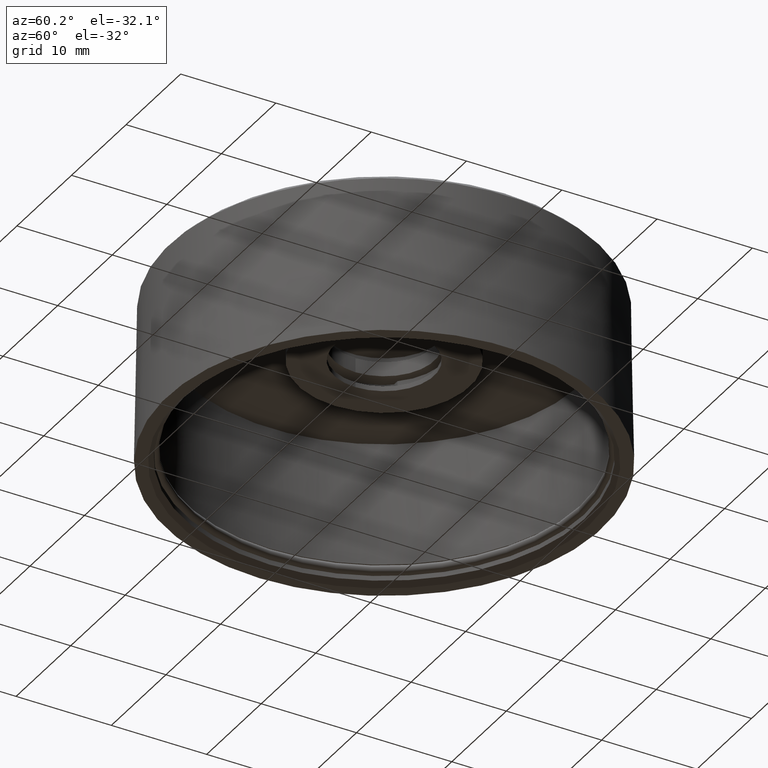
[diagram: clean part render]
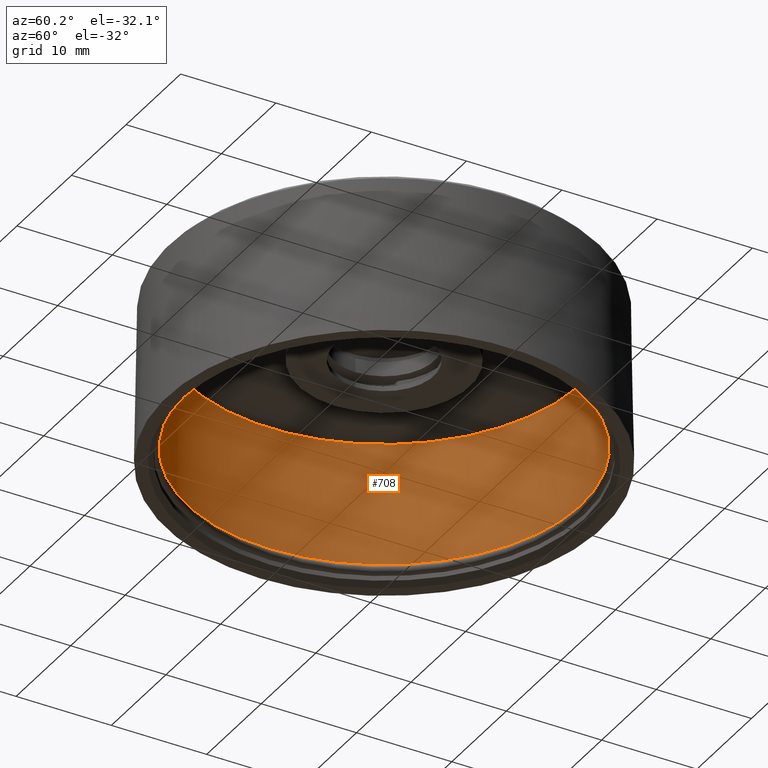
[diagram: same view with one face highlighted and labeled with its STEP entity id]
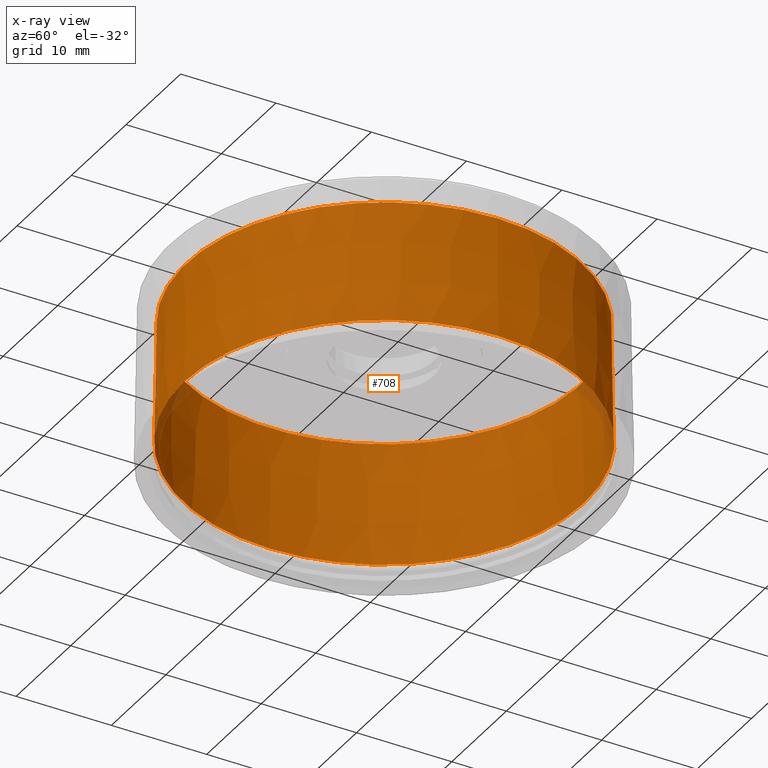
[diagram: x-ray of the same camera — body ghosted, the highlighted face saturated]
A machine part, auxiliary view. The second image highlights one B-rep face of the part: STEP entity #708.
The next image is the same camera in x-ray: the body ghosted, the highlighted face saturated — about 2% of this face is hidden behind the body in this view.
In plain terms, the highlighted conical surface has half-angle 1 deg.
Its self-contained STEP definition (entity closure, byte-faithful):
#27 = VERTEX_POINT ( 'NONE', #334 ) ;
#105 = AXIS2_PLACEMENT_3D ( 'NONE', #191, #806, #420 ) ;
#191 = CARTESIAN_POINT ( 'NONE',  ( 0.000000000000000000, 0.000000000000000000, 0.08661417322834646937 ) ) ;
#255 = VERTEX_POINT ( 'NONE', #868 ) ;
#274 = CONICAL_SURFACE ( 'NONE', #723, 0.8169291338582678197, 0.01745329251994153993 ) ;
#303 = DIRECTION ( 'NONE',  ( 0.000000000000000000, 0.000000000000000000, 1.000000000000000000 ) ) ;
#334 = CARTESIAN_POINT ( 'NONE',  ( 0.8169291338582678197, 0.000000000000000000, 0.5905511811023621549 ) ) ;
#398 = CIRCLE ( 'NONE', #785, 0.8169291338582678197 ) ;
#419 = DIRECTION ( 'NONE',  ( 0.000000000000000000, 0.000000000000000000, -1.000000000000000000 ) ) ;
#420 = DIRECTION ( 'NONE',  ( 1.000000000000000000, 0.000000000000000000, 0.000000000000000000 ) ) ;
#439 = FACE_OUTER_BOUND ( 'NONE', #584, .T. ) ;
#508 = ORIENTED_EDGE ( 'NONE', *, *, #875, .T. ) ;
#538 = DIRECTION ( 'NONE',  ( 1.000000000000000000, 0.000000000000000000, 0.000000000000000000 ) ) ;
#540 = CIRCLE ( 'NONE', #105, 0.8257253870504410731 ) ;
#584 = EDGE_LOOP ( 'NONE', ( #971 ) ) ;
#597 = EDGE_LOOP ( 'NONE', ( #508 ) ) ;
#633 = FACE_BOUND ( 'NONE', #597, .T. ) ;
#656 = EDGE_CURVE ( 'NONE', #255, #255, #540, .T. ) ;
#680 = CARTESIAN_POINT ( 'NONE',  ( 0.000000000000000000, 0.000000000000000000, 0.5905511811023621549 ) ) ;
#708 = ADVANCED_FACE ( 'NONE', ( #633, #439 ), #274, .F. ) ;
#723 = AXIS2_PLACEMENT_3D ( 'NONE', #728, #419, #962 ) ;
#728 = CARTESIAN_POINT ( 'NONE',  ( 0.000000000000000000, 0.000000000000000000, 0.5905511811023621549 ) ) ;
#785 = AXIS2_PLACEMENT_3D ( 'NONE', #680, #303, #538 ) ;
#806 = DIRECTION ( 'NONE',  ( 0.000000000000000000, 0.000000000000000000, -1.000000000000000000 ) ) ;
#868 = CARTESIAN_POINT ( 'NONE',  ( 0.8257253870504410731, 0.000000000000000000, 0.08661417322834646937 ) ) ;
#875 = EDGE_CURVE ( 'NONE', #27, #27, #398, .T. ) ;
#962 = DIRECTION ( 'NONE',  ( 1.000000000000000000, 0.000000000000000000, 0.000000000000000000 ) ) ;
#971 = ORIENTED_EDGE ( 'NONE', *, *, #656, .T. ) ;